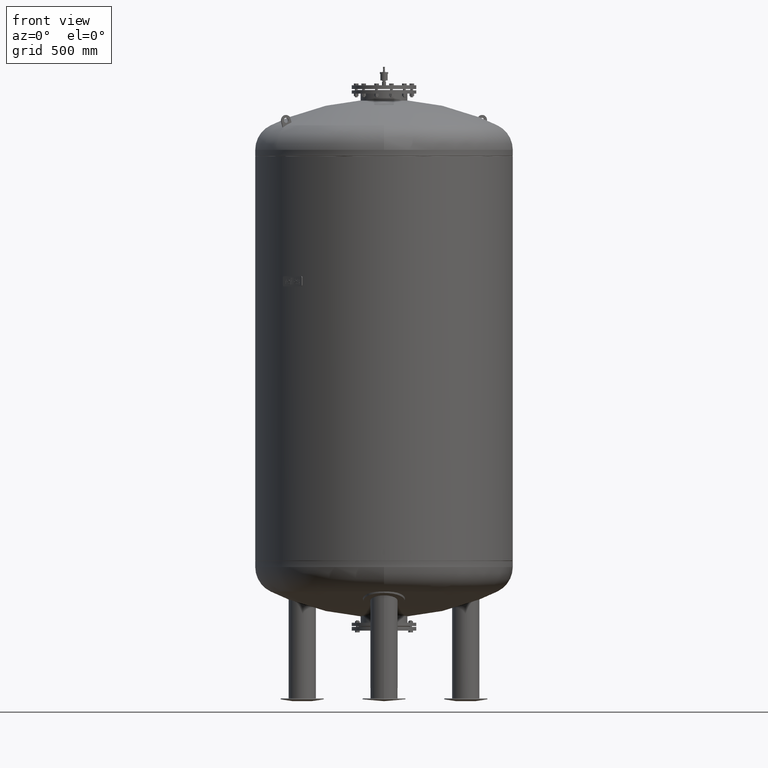
[diagram: clean part render]
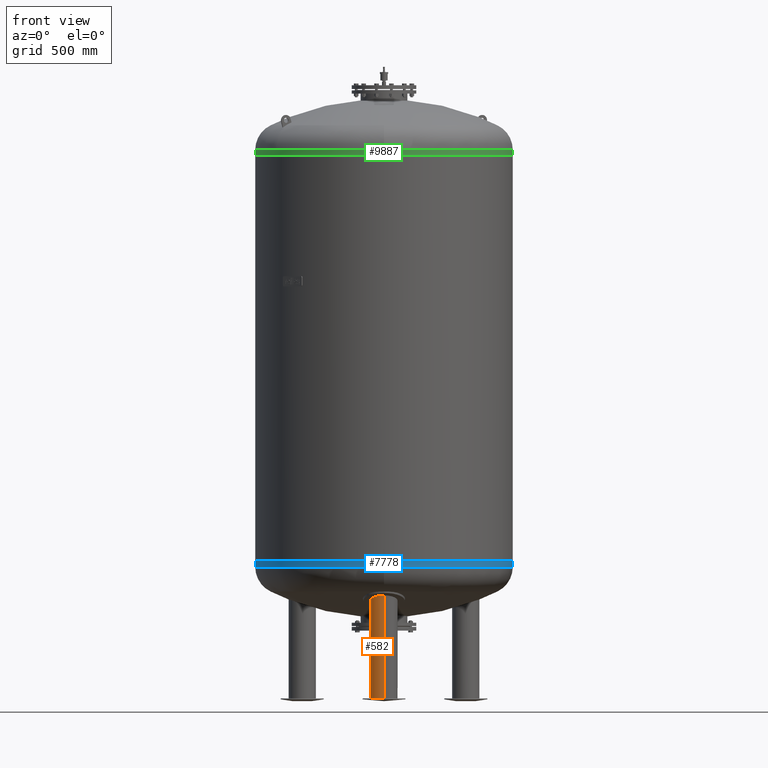
[diagram: same view with three faces highlighted in distinct colors, each labeled with its STEP entity id]
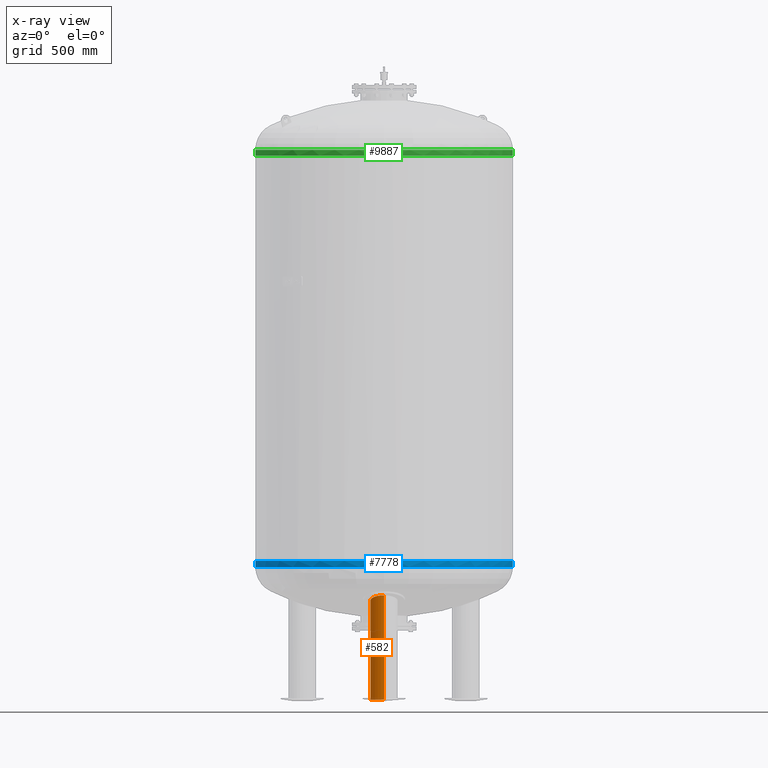
[diagram: x-ray of the same camera — body ghosted, the three highlighted faces saturated]
A machine part, front view with three faces highlighted in distinct colors.
The next image is the same camera in x-ray (body ghosted, the three faces saturated) — at least one of them is partly hidden behind the body in this view.
Their STEP definitions:

[orange] entity #582 — the highlighted cylindrical surface (edge-blend (fillet) strip) has radius 79.5 mm, axis along (0, -0, -1).
#172=CARTESIAN_POINT('',(-1.674052E-014,-629.500000000000000,11.631170282581067));
#173=VERTEX_POINT('',#172);
#174=CARTESIAN_POINT('',(-1.284913E-013,-629.500000000000680,619.974328976416250));
#175=VERTEX_POINT('',#174);
#176=CARTESIAN_POINT('',(-1.674052E-014,-629.500000000000000,11.631170282581067));
#177=DIRECTION('',(0.0,0.0,1.0));
#178=VECTOR('',#177,608.343158693835220);
#179=LINE('',#176,#178);
#180=EDGE_CURVE('',#173,#175,#179,.T.);
#182=CARTESIAN_POINT('',(2.220292E-014,-470.500000000000000,11.631170282581067));
#183=VERTEX_POINT('',#182);
#191=CARTESIAN_POINT('',(-7.182689E-014,-470.500000000000000,557.801446445446690));
#192=VERTEX_POINT('',#191);
#193=CARTESIAN_POINT('',(2.220292E-014,-470.500000000000000,11.631170282581067));
#194=DIRECTION('',(0.0,0.0,1.0));
#195=VECTOR('',#194,546.170276162865660);
#196=LINE('',#193,#195);
#197=EDGE_CURVE('',#183,#192,#196,.T.);
#279=CARTESIAN_POINT('',(-79.496546794574755,-549.259022444332120,588.259208461118310));
#280=VERTEX_POINT('',#279);
#281=CARTESIAN_POINT('',(-79.496546794574755,-549.259022444332120,588.259208461118310));
#282=CARTESIAN_POINT('',(-79.413984862175425,-540.401279760728700,584.797146556692160));
#283=CARTESIAN_POINT('',(-77.851266591540124,-531.575460725973930,581.360502151041940));
#284=CARTESIAN_POINT('',(-71.208252571481324,-513.058214382275310,574.174236989335670));
#285=CARTESIAN_POINT('',(-65.536339505062784,-503.676852198831510,570.549958778381670));
#286=CARTESIAN_POINT('',(-51.074552176673599,-488.232684979459290,564.600364334074580));
#287=CARTESIAN_POINT('',(-42.669749602980012,-482.115720236831750,562.252334812652180));
#288=CARTESIAN_POINT('',(-24.231733499397382,-473.643130615666110,559.003880738072780));
#289=CARTESIAN_POINT('',(-14.525158374878799,-471.203296638851610,558.070588206412370));
#290=CARTESIAN_POINT('',(-3.038514087384449,-470.543488982217640,557.818088260262240));
#291=CARTESIAN_POINT('',(-1.518216679410991,-470.500000000000000,557.801446445446690));
#292=CARTESIAN_POINT('',(-7.182689E-014,-470.500000000000000,557.801446445446690));
#293=B_SPLINE_CURVE_WITH_KNOTS('',3,(#281,#282,#283,#284,#285,#286,#287,#288,#289,#290,#291,#292),.UNSPECIFIED.,.F.,.U.,(4,2,2,2,2,4),(13.058196146459986,15.908544671985489,19.326182717890447,22.493256912797680,25.489178793934588,25.946274642103887),.UNSPECIFIED.);
#294=EDGE_CURVE('',#280,#192,#293,.T.);
#545=CARTESIAN_POINT('',(-1.232084E-013,-629.500000000000000,619.974328976416360));
#546=CARTESIAN_POINT('',(-9.592202166925056,-629.499999999999770,619.974328976416020));
#547=CARTESIAN_POINT('',(-19.057045087347216,-627.764875279292370,619.280247607236110));
#548=CARTESIAN_POINT('',(-37.029118879032922,-621.014758583427350,616.585819491894090));
#549=CARTESIAN_POINT('',(-45.297994220543927,-616.016537504471100,614.592514188904490));
#550=CARTESIAN_POINT('',(-60.037998727795404,-603.087412912687230,609.453155597640030));
#551=CARTESIAN_POINT('',(-66.211195741385069,-595.101102273712850,606.286372499794770));
#552=CARTESIAN_POINT('',(-75.609934501561952,-576.790586001446740,599.055880090259170));
#553=CARTESIAN_POINT('',(-78.493118529778243,-566.452340789569350,594.989155554557560));
#554=CARTESIAN_POINT('',(-79.444984341154537,-553.699965758499730,589.995750597807050));
#555=CARTESIAN_POINT('',(-79.517234166208439,-551.478488600296260,589.126690109795050));
#556=CARTESIAN_POINT('',(-79.496546794574755,-549.259022444332120,588.259208461118310));
#557=B_SPLINE_CURVE_WITH_KNOTS('',3,(#545,#546,#547,#548,#549,#550,#551,#552,#553,#554,#555,#556),.UNSPECIFIED.,.F.,.U.,(4,2,2,2,2,4),(0.0,2.877660650077480,5.813761654146234,8.951189755024860,12.343990246483170,13.058196146459986),.UNSPECIFIED.);
#558=EDGE_CURVE('',#175,#280,#557,.T.);
#564=CARTESIAN_POINT('',(-2.905276E-015,-550.0,15.815585141290533));
#565=DIRECTION('',(1.836970E-016,-3.374460E-032,-1.0));
#566=DIRECTION('',(0.0,-1.0,0.0));
#567=AXIS2_PLACEMENT_3D('',#564,#565,#566);
#568=CYLINDRICAL_SURFACE('',#567,79.500000000000000);
#569=ORIENTED_EDGE('',*,*,#180,.T.);
#570=ORIENTED_EDGE('',*,*,#558,.T.);
#571=ORIENTED_EDGE('',*,*,#294,.T.);
#572=ORIENTED_EDGE('',*,*,#197,.F.);
#573=CARTESIAN_POINT('',(-2.136611E-015,-550.0,11.631170282581067));
#574=DIRECTION('',(0.0,0.0,-1.0));
#575=DIRECTION('',(0.0,-1.0,0.0));
#576=AXIS2_PLACEMENT_3D('',#573,#574,#575);
#577=CIRCLE('',#576,79.500000000000000);
#578=EDGE_CURVE('',#173,#183,#577,.T.);
#579=ORIENTED_EDGE('',*,*,#578,.F.);
#580=EDGE_LOOP('',(#569,#570,#571,#572,#579));
#581=FACE_OUTER_BOUND('',#580,.T.);
#582=ADVANCED_FACE('',(#581),#568,.T.);

[blue] entity #7778 — the highlighted cylindrical surface (partial cylindrical patch) has radius 750 mm, axis along (-0, -0, 1).
#7626=CARTESIAN_POINT('',(-750.0,-6.062002E-014,819.999999999999890));
#7627=VERTEX_POINT('',#7626);
#7628=CARTESIAN_POINT('',(-750.0,-5.423428E-014,785.237667415897930));
#7629=VERTEX_POINT('',#7628);
#7630=CARTESIAN_POINT('',(-750.0,-6.062002E-014,819.999999999999890));
#7631=DIRECTION('',(0.0,0.0,-1.0));
#7632=VECTOR('',#7631,34.762332584101955);
#7633=LINE('',#7630,#7632);
#7634=EDGE_CURVE('',#7627,#7629,#7633,.T.);
#7636=CARTESIAN_POINT('',(750.0,3.122546E-014,820.000000000000110));
#7637=VERTEX_POINT('',#7636);
#7645=CARTESIAN_POINT('',(750.0,3.761120E-014,785.237667415898160));
#7646=VERTEX_POINT('',#7645);
#7647=CARTESIAN_POINT('',(750.0,3.122546E-014,820.000000000000110));
#7648=DIRECTION('',(0.0,0.0,-1.0));
#7649=VECTOR('',#7648,34.762332584101955);
#7650=LINE('',#7647,#7649);
#7651=EDGE_CURVE('',#7637,#7646,#7650,.T.);
#7677=CARTESIAN_POINT('',(-7.105427E-014,-750.0,785.237667415898040));
#7678=VERTEX_POINT('',#7677);
#7688=CARTESIAN_POINT('',(-5.075605E-014,-5.423428E-014,785.237667415898160));
#7689=DIRECTION('',(0.0,0.0,1.0));
#7690=DIRECTION('',(-1.0,0.0,0.0));
#7691=AXIS2_PLACEMENT_3D('',#7688,#7689,#7690);
#7692=CIRCLE('',#7691,750.0);
#7693=EDGE_CURVE('',#7629,#7678,#7692,.T.);
#7750=CARTESIAN_POINT('',(-5.075605E-014,-5.423428E-014,785.237667415898160));
#7751=DIRECTION('',(0.0,0.0,1.0));
#7752=DIRECTION('',(-1.0,0.0,0.0));
#7753=AXIS2_PLACEMENT_3D('',#7750,#7751,#7752);
#7754=CIRCLE('',#7753,750.0);
#7755=EDGE_CURVE('',#7678,#7646,#7754,.T.);
#7760=CARTESIAN_POINT('',(-5.374415E-014,-5.742715E-014,802.618833707949080));
#7761=DIRECTION('',(-1.719159E-016,-1.836970E-016,1.0));
#7762=DIRECTION('',(-1.0,0.0,0.0));
#7763=AXIS2_PLACEMENT_3D('',#7760,#7761,#7762);
#7764=CYLINDRICAL_SURFACE('',#7763,750.0);
#7765=ORIENTED_EDGE('',*,*,#7634,.T.);
#7766=ORIENTED_EDGE('',*,*,#7693,.T.);
#7767=ORIENTED_EDGE('',*,*,#7755,.T.);
#7768=ORIENTED_EDGE('',*,*,#7651,.F.);
#7769=CARTESIAN_POINT('',(-5.673224E-014,-6.062002E-014,820.0));
#7770=DIRECTION('',(0.0,0.0,1.0));
#7771=DIRECTION('',(-1.0,0.0,0.0));
#7772=AXIS2_PLACEMENT_3D('',#7769,#7770,#7771);
#7773=CIRCLE('',#7772,750.0);
#7774=EDGE_CURVE('',#7627,#7637,#7773,.T.);
#7775=ORIENTED_EDGE('',*,*,#7774,.F.);
#7776=EDGE_LOOP('',(#7765,#7766,#7767,#7768,#7775));
#7777=FACE_OUTER_BOUND('',#7776,.T.);
#7778=ADVANCED_FACE('',(#7777),#7764,.T.);

[green] entity #9887 — the highlighted cylindrical surface (partial cylindrical patch) has radius 750 mm, axis along (0, -0, -1).
#9016=CARTESIAN_POINT('',(750.0,-6.062002E-014,3180.0));
#9017=VERTEX_POINT('',#9016);
#9018=CARTESIAN_POINT('',(750.0,-5.423428E-014,3214.762332584101800));
#9019=VERTEX_POINT('',#9018);
#9020=CARTESIAN_POINT('',(750.0,-6.062002E-014,3180.0));
#9021=DIRECTION('',(0.0,0.0,1.0));
#9022=VECTOR('',#9021,34.762332584101841);
#9023=LINE('',#9020,#9022);
#9024=EDGE_CURVE('',#9017,#9019,#9023,.T.);
#9026=CARTESIAN_POINT('',(-750.0,3.122546E-014,3180.0));
#9027=VERTEX_POINT('',#9026);
#9035=CARTESIAN_POINT('',(-750.0,3.761120E-014,3214.762332584101800));
#9036=VERTEX_POINT('',#9035);
#9037=CARTESIAN_POINT('',(-750.0,3.122546E-014,3180.0));
#9038=DIRECTION('',(0.0,0.0,1.0));
#9039=VECTOR('',#9038,34.762332584101841);
#9040=LINE('',#9037,#9039);
#9041=EDGE_CURVE('',#9027,#9036,#9040,.T.);
#9130=CARTESIAN_POINT('',(3.489809E-014,-750.0,3214.762332584101800));
#9131=VERTEX_POINT('',#9130);
#9141=CARTESIAN_POINT('',(1.459986E-014,-5.423428E-014,3214.762332584101800));
#9142=DIRECTION('',(0.0,0.0,-1.0));
#9143=DIRECTION('',(1.0,0.0,0.0));
#9144=AXIS2_PLACEMENT_3D('',#9141,#9142,#9143);
#9145=CIRCLE('',#9144,750.0);
#9146=EDGE_CURVE('',#9019,#9131,#9145,.T.);
#9629=CARTESIAN_POINT('',(1.459986E-014,-5.423428E-014,3214.762332584101800));
#9630=DIRECTION('',(0.0,0.0,-1.0));
#9631=DIRECTION('',(1.0,0.0,0.0));
#9632=AXIS2_PLACEMENT_3D('',#9629,#9630,#9631);
#9633=CIRCLE('',#9632,750.0);
#9634=EDGE_CURVE('',#9131,#9036,#9633,.T.);
#9869=CARTESIAN_POINT('',(1.545938E-014,-5.742715E-014,3197.381166292050700));
#9870=DIRECTION('',(4.945121E-017,-1.836970E-016,-1.0));
#9871=DIRECTION('',(1.0,0.0,0.0));
#9872=AXIS2_PLACEMENT_3D('',#9869,#9870,#9871);
#9873=CYLINDRICAL_SURFACE('',#9872,750.0);
#9874=ORIENTED_EDGE('',*,*,#9024,.T.);
#9875=ORIENTED_EDGE('',*,*,#9146,.T.);
#9876=ORIENTED_EDGE('',*,*,#9634,.T.);
#9877=ORIENTED_EDGE('',*,*,#9041,.F.);
#9878=CARTESIAN_POINT('',(1.631890E-014,-6.062002E-014,3180.0));
#9879=DIRECTION('',(0.0,0.0,-1.0));
#9880=DIRECTION('',(1.0,0.0,0.0));
#9881=AXIS2_PLACEMENT_3D('',#9878,#9879,#9880);
#9882=CIRCLE('',#9881,750.0);
#9883=EDGE_CURVE('',#9017,#9027,#9882,.T.);
#9884=ORIENTED_EDGE('',*,*,#9883,.F.);
#9885=EDGE_LOOP('',(#9874,#9875,#9876,#9877,#9884));
#9886=FACE_OUTER_BOUND('',#9885,.T.);
#9887=ADVANCED_FACE('',(#9886),#9873,.T.);